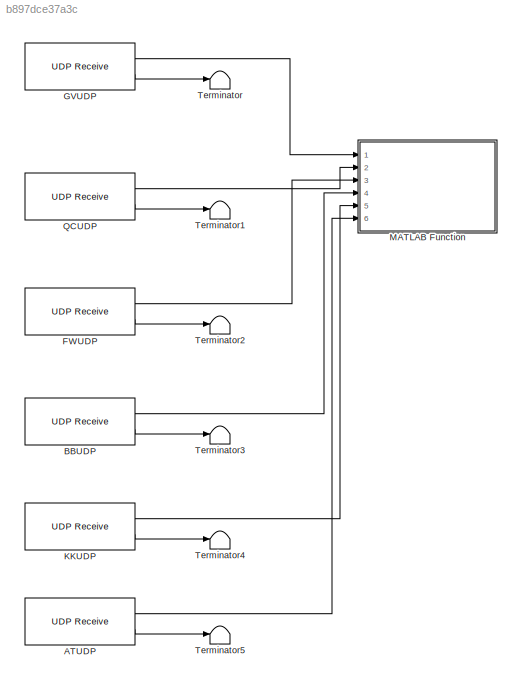
MODEL slx_b897dce37a3c
KIND model
BLOCK [Reference] ATUDP  REF=instrumentlib/UDP Receive
  ByteOrder = BigEndian
  DataSize = [6 1]
  DataType = double
  EnableBlockingMode = off
  Host = 127.0.0.1
  LocalPort = 4045
  Port = 4015
  Ports = [0, 2]
  SampleTime = -1
  SourceBlock = instrumentlib/UDP Receive
  SourceType = UDP Receive
  Timeout = 10
BLOCK [Reference] BBUDP  REF=instrumentlib/UDP Receive
  ByteOrder = BigEndian
  DataSize = [6 1]
  DataType = double
  EnableBlockingMode = off
  Host = 127.0.0.1
  LocalPort = 4046
  Port = 4016
  Ports = [0, 2]
  SampleTime = -1
  SourceBlock = instrumentlib/UDP Receive
  SourceType = UDP Receive
  Timeout = 10
BLOCK [Reference] FWUDP  REF=instrumentlib/UDP Receive
  ByteOrder = LittleEndian
  DataSize = [6  1]
  DataType = double
  EnableBlockingMode = off
  Host = 127.0.0.1
  LocalPort = 4043
  Port = 4013
  Ports = [0, 2]
  SampleTime = -1
  SourceBlock = instrumentlib/UDP Receive
  SourceType = UDP Receive
  Timeout = 10
BLOCK [Reference] GVUDP  REF=instrumentlib/UDP Receive
  ByteOrder = LittleEndian
  DataSize = [12 1]
  DataType = double
  EnableBlockingMode = off
  Host = 127.0.0.1
  LocalPort = 4042
  Port = 4012
  Ports = [0, 2]
  SampleTime = -1
  SourceBlock = instrumentlib/UDP Receive
  SourceType = UDP Receive
  Timeout = 10
BLOCK [Reference] KKUDP  REF=instrumentlib/UDP Receive
  ByteOrder = BigEndian
  DataSize = [6 1]
  DataType = double
  EnableBlockingMode = off
  Host = 127.0.0.1
  LocalPort = 4047
  Port = 4017
  Ports = [0, 2]
  SampleTime = -1
  SourceBlock = instrumentlib/UDP Receive
  SourceType = UDP Receive
  Timeout = 10
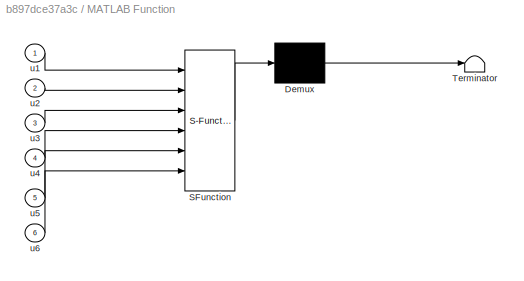
BLOCK [SubSystem] MATLAB Function
  ErrorFcn = Stateflow.Translate.translate
  PermitHierarchicalResolution = ExplicitOnly
  Ports = [6]
  RequestExecContextInheritance = off
  SFBlockType = MATLAB Function
  TreatAsAtomicUnit = on
BLOCK [Demux] MATLAB Function/ Demux 
  Outputs = 1
  Ports = [1, 1]
BLOCK [S-Function] MATLAB Function/ SFunction 
  EnableBusSupport = on
  FunctionName = sf_sfun
  PortCounts = [6 1]
  Ports = [6, 1]
  Tag = Stateflow S-Function ReceiveSimData 2
BLOCK [Terminator] MATLAB Function/ Terminator 
BLOCK [Inport] MATLAB Function/u1
  IconDisplay = Port number
BLOCK [Inport] MATLAB Function/u2
  IconDisplay = Port number
  Port = 2
BLOCK [Inport] MATLAB Function/u3
  IconDisplay = Port number
  Port = 3
BLOCK [Inport] MATLAB Function/u4
  IconDisplay = Port number
  Port = 4
BLOCK [Inport] MATLAB Function/u5
  IconDisplay = Port number
  Port = 5
BLOCK [Inport] MATLAB Function/u6
  IconDisplay = Port number
  Port = 6
BLOCK [Reference] QCUDP  REF=instrumentlib/UDP Receive
  ByteOrder = LittleEndian
  DataSize = [12 1]
  DataType = double
  EnableBlockingMode = off
  Host = 127.0.0.1
  LocalPort = 4044
  Port = 4014
  Ports = [0, 2]
  SampleTime = -1
  SourceBlock = instrumentlib/UDP Receive
  SourceType = UDP Receive
  Timeout = 10
BLOCK [Terminator] Terminator
BLOCK [Terminator] Terminator1
BLOCK [Terminator] Terminator2
BLOCK [Terminator] Terminator3
BLOCK [Terminator] Terminator4
BLOCK [Terminator] Terminator5
LINE ATUDP:1 -> MATLAB Function:6
LINE ATUDP:2 -> Terminator5:1
LINE BBUDP:1 -> MATLAB Function:4
LINE BBUDP:2 -> Terminator3:1
LINE FWUDP:1 -> MATLAB Function:3
LINE FWUDP:2 -> Terminator2:1
LINE GVUDP:1 -> MATLAB Function:1
LINE GVUDP:2 -> Terminator:1
LINE KKUDP:1 -> MATLAB Function:5
LINE KKUDP:2 -> Terminator4:1
LINE QCUDP:1 -> MATLAB Function:2
LINE QCUDP:2 -> Terminator1:1
